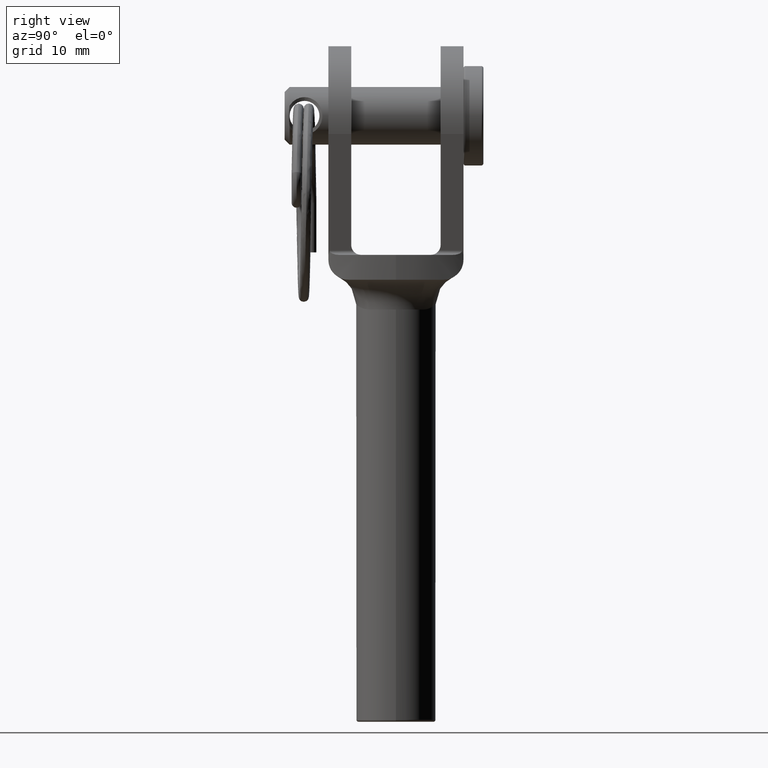
[diagram: clean part render]
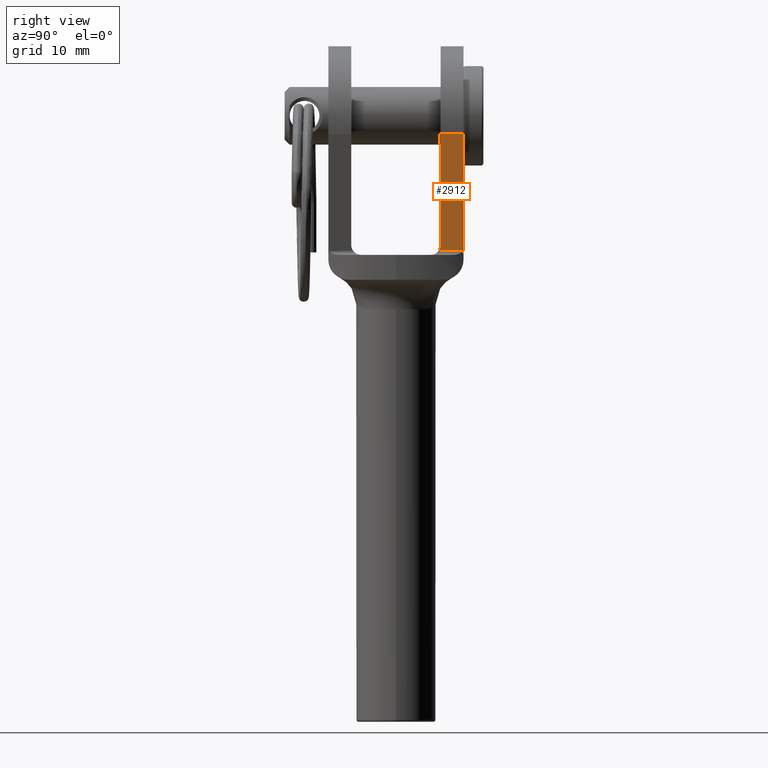
[diagram: same view with one face highlighted and labeled with its STEP entity id]
A machine part, right view. The second image highlights one B-rep face of the part: STEP entity #2912.
In plain terms, the highlighted planar face has unit normal (-0.9868, 0, 0.1622).
Its self-contained STEP definition (entity closure, byte-faithful):
#85 = CARTESIAN_POINT ( 'NONE',  ( 5.500000000000000000, 6.799999999999999800, 9.302536199233404900E-016 ) ) ;
#950 =( BOUNDED_CURVE ( )  B_SPLINE_CURVE ( 3, ( #9574, #15774, #12695, #11375 ),
 .UNSPECIFIED., .F., .T. ) 
 B_SPLINE_CURVE_WITH_KNOTS ( ( 4, 4 ),
 ( 0.4228444648071344500, 0.4342226294698104400 ),
 .UNSPECIFIED. ) 
 CURVE ( )  GEOMETRIC_REPRESENTATION_ITEM ( )  RATIONAL_B_SPLINE_CURVE ( ( 1.000000000000000000, 0.9999892114765073200, 0.9999892114765073200, 1.000000000000000000 ) ) 
 REPRESENTATION_ITEM ( '' )  );
#1372 = ORIENTED_EDGE ( 'NONE', *, *, #10077, .T. ) ;
#1379 = VECTOR ( 'NONE', #3082, 1000.000000000000200 ) ;
#1952 = PLANE ( 'NONE',  #13607 ) ;
#2912 = ADVANCED_FACE ( 'NONE', ( #17752 ), #1952, .F. ) ;
#3082 = DIRECTION ( 'NONE',  ( -0.1622095469790641200, -0.0000000000000000000, -0.9867563340910696600 ) ) ;
#3285 = VERTEX_POINT ( 'NONE', #14851 ) ;
#3711 = EDGE_CURVE ( 'NONE', #17297, #15101, #15757, .T. ) ;
#3866 = EDGE_CURVE ( 'NONE', #17083, #3285, #19056, .T. ) ;
#4339 = CARTESIAN_POINT ( 'NONE',  ( 7.500000000000000000, 6.799999999999999800, 12.16643967593877200 ) ) ;
#4596 = DIRECTION ( 'NONE',  ( -0.0000000000000000000, 1.000000000000000000, -0.0000000000000000000 ) ) ;
#5433 = LINE ( 'NONE', #6192, #1379 ) ;
#6013 = EDGE_LOOP ( 'NONE', ( #17352, #10324, #7320, #1372, #16417, #6776 ) ) ;
#6192 = CARTESIAN_POINT ( 'NONE',  ( 5.500000000000000000, 4.500000000000000000, 9.302536199233404900E-016 ) ) ;
#6652 = DIRECTION ( 'NONE',  ( -0.9867563340910697800, 0.0000000000000000000, 0.1622095469790641500 ) ) ;
#6776 = ORIENTED_EDGE ( 'NONE', *, *, #18008, .T. ) ;
#6803 = DIRECTION ( 'NONE',  ( -0.1622095469790641200, -0.0000000000000000000, -0.9867563340910696600 ) ) ;
#7184 = CARTESIAN_POINT ( 'NONE',  ( 5.576420683646837500, 6.799999999999998000, 0.4648838187916252100 ) ) ;
#7233 = EDGE_CURVE ( 'NONE', #7511, #17083, #15338, .T. ) ;
#7320 = ORIENTED_EDGE ( 'NONE', *, *, #3866, .T. ) ;
#7511 = VERTEX_POINT ( 'NONE', #19276 ) ;
#7728 = CARTESIAN_POINT ( 'NONE',  ( 5.602911492270998800, 4.446856902828225900, 0.6260332313379708400 ) ) ;
#9207 = CARTESIAN_POINT ( 'NONE',  ( 5.576420683646837500, 4.344778475464997800, 0.4648838187916252100 ) ) ;
#9547 = DIRECTION ( 'NONE',  ( 0.1622095469790641200, 0.0000000000000000000, 0.9867563340910696600 ) ) ;
#9574 = CARTESIAN_POINT ( 'NONE',  ( 5.576420683646837500, 6.632721610572948700, 0.4648838187916252100 ) ) ;
#10077 = EDGE_CURVE ( 'NONE', #3285, #15101, #950, .T. ) ;
#10245 = CARTESIAN_POINT ( 'NONE',  ( 5.576420683646837500, 4.344778475464997800, 0.4648838187916252100 ) ) ;
#10324 = ORIENTED_EDGE ( 'NONE', *, *, #7233, .T. ) ;
#10928 = VERTEX_POINT ( 'NONE', #12396 ) ;
#11088 = CARTESIAN_POINT ( 'NONE',  ( 5.500000000000000000, 6.799999999999999800, 9.302536199233404900E-016 ) ) ;
#11375 = CARTESIAN_POINT ( 'NONE',  ( 5.500000000000000000, 6.799999999999999800, 9.302536199233404900E-016 ) ) ;
#11525 = VECTOR ( 'NONE', #4596, 1000.000000000000000 ) ;
#12396 = CARTESIAN_POINT ( 'NONE',  ( 7.500000000000000000, 4.500000000000000000, 12.16643967593877200 ) ) ;
#12587 = EDGE_CURVE ( 'NONE', #10928, #7511, #5433, .T. ) ;
#12695 = CARTESIAN_POINT ( 'NONE',  ( 5.525790645690825900, 6.744385759610811000, 0.1568901675004868700 ) ) ;
#13441 = DIRECTION ( 'NONE',  ( -0.0000000000000000000, -1.000000000000000000, -0.0000000000000000000 ) ) ;
#13463 = LINE ( 'NONE', #4339, #16524 ) ;
#13607 = AXIS2_PLACEMENT_3D ( 'NONE', #11088, #6652, #9547 ) ;
#14289 = CARTESIAN_POINT ( 'NONE',  ( 7.500000000000000000, 6.799999999999999800, 12.16643967593877200 ) ) ;
#14851 = CARTESIAN_POINT ( 'NONE',  ( 5.576420683646837500, 6.632721610572948700, 0.4648838187916252100 ) ) ;
#15089 = CARTESIAN_POINT ( 'NONE',  ( 5.664386628567709400, 4.500000000000000000, 0.9999999999999991100 ) ) ;
#15101 = VERTEX_POINT ( 'NONE', #85 ) ;
#15210 = CARTESIAN_POINT ( 'NONE',  ( 5.633028338325313000, 4.499999999999999100, 0.8092406267126497400 ) ) ;
#15338 =( BOUNDED_CURVE ( )  B_SPLINE_CURVE ( 3, ( #15089, #15210, #7728, #9207 ),
 .UNSPECIFIED., .F., .T. ) 
 B_SPLINE_CURVE_WITH_KNOTS ( ( 4, 4 ),
 ( 4.712388980384689700, 5.277034250138145300 ),
 .UNSPECIFIED. ) 
 CURVE ( )  GEOMETRIC_REPRESENTATION_ITEM ( )  RATIONAL_B_SPLINE_CURVE ( ( 1.000000000000000000, 0.9736073155671540700, 0.9736073155671540700, 1.000000000000000000 ) ) 
 REPRESENTATION_ITEM ( '' )  );
#15757 = LINE ( 'NONE', #19003, #17395 ) ;
#15774 = CARTESIAN_POINT ( 'NONE',  ( 5.551264481731517500, 6.688625694899694300, 0.3118531122524099700 ) ) ;
#16417 = ORIENTED_EDGE ( 'NONE', *, *, #3711, .F. ) ;
#16524 = VECTOR ( 'NONE', #13441, 1000.000000000000000 ) ;
#17083 = VERTEX_POINT ( 'NONE', #10245 ) ;
#17297 = VERTEX_POINT ( 'NONE', #14289 ) ;
#17352 = ORIENTED_EDGE ( 'NONE', *, *, #12587, .T. ) ;
#17395 = VECTOR ( 'NONE', #6803, 1000.000000000000200 ) ;
#17752 = FACE_OUTER_BOUND ( 'NONE', #6013, .T. ) ;
#18008 = EDGE_CURVE ( 'NONE', #17297, #10928, #13463, .T. ) ;
#19003 = CARTESIAN_POINT ( 'NONE',  ( 5.500000000000000000, 6.799999999999999800, 9.302536199233404900E-016 ) ) ;
#19056 = LINE ( 'NONE', #7184, #11525 ) ;
#19276 = CARTESIAN_POINT ( 'NONE',  ( 5.664386628567709400, 4.500000000000000000, 0.9999999999999991100 ) ) ;